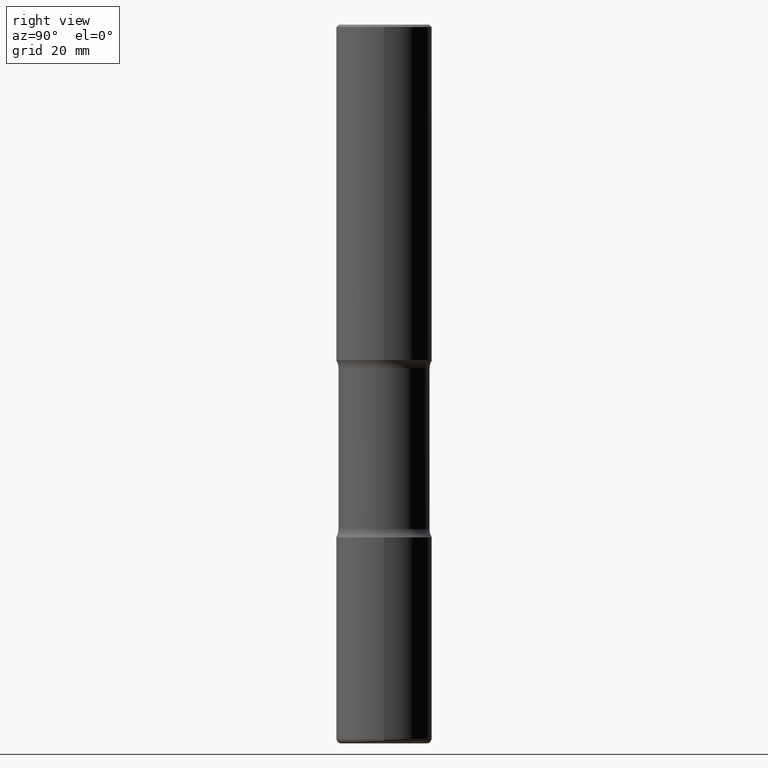
[diagram: clean part render]
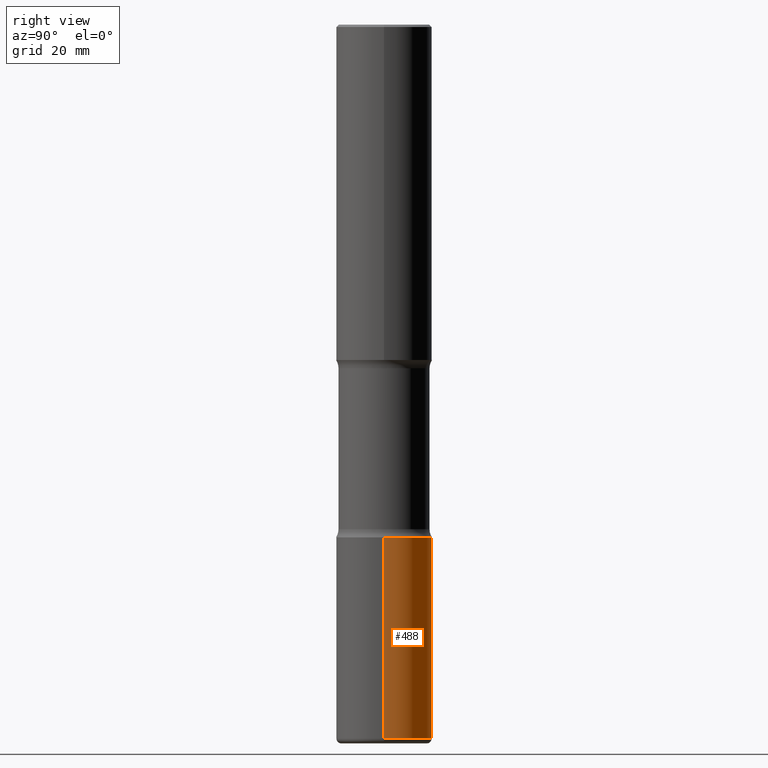
[diagram: same view with one face highlighted and labeled with its STEP entity id]
A machine part, right view. The second image highlights one B-rep face of the part: STEP entity #488.
In plain terms, the highlighted cylindrical surface (partial cylindrical patch) has radius 10 mm, axis along (-0, 0, 1).
Its self-contained STEP definition (entity closure, byte-faithful):
#5 = VECTOR ( 'NONE', #74, 39.37007874015748143 ) ;
#7 = CARTESIAN_POINT ( 'NONE',  ( 0.3937000000000002720, -1.745740669421571411E-14, -4.212599999999998346 ) ) ;
#24 = VERTEX_POINT ( 'NONE', #385 ) ;
#28 = EDGE_CURVE ( 'NONE', #371, #24, #262, .T. ) ;
#62 = EDGE_CURVE ( 'NONE', #157, #24, #226, .T. ) ;
#74 = DIRECTION ( 'NONE',  ( -2.445468806185136877E-29, 3.491481338843145188E-15, 1.000000000000000000 ) ) ;
#88 = DIRECTION ( 'NONE',  ( 1.000000000000000000, -6.982962677686265133E-15, 0.000000000000000000 ) ) ;
#108 = ORIENTED_EDGE ( 'NONE', *, *, #203, .T. ) ;
#117 = CARTESIAN_POINT ( 'NONE',  ( 0.000000000000000000, 0.000000000000000000, 0.000000000000000000 ) ) ;
#124 = CARTESIAN_POINT ( 'NONE',  ( -0.3937000000000004385, -1.768397193110025560E-14, -5.866099999999998538 ) ) ;
#151 = EDGE_LOOP ( 'NONE', ( #108, #539, #335, #290 ) ) ;
#157 = VERTEX_POINT ( 'NONE', #7 ) ;
#171 = CARTESIAN_POINT ( 'NONE',  ( 0.3937000000000004385, -2.323057108799285912E-14, -5.866099999999998538 ) ) ;
#203 = EDGE_CURVE ( 'NONE', #462, #371, #296, .T. ) ;
#213 = LINE ( 'NONE', #435, #5 ) ;
#226 = CIRCLE ( 'NONE', #306, 0.3937000000000002720 ) ;
#230 = DIRECTION ( 'NONE',  ( 1.000000000000000000, -6.982962677686269077E-15, 0.000000000000000000 ) ) ;
#262 = LINE ( 'NONE', #469, #466 ) ;
#278 = CARTESIAN_POINT ( 'NONE',  ( 1.434536456396262699E-28, -2.048137868178777275E-14, -5.866099999999998538 ) ) ;
#290 = ORIENTED_EDGE ( 'NONE', *, *, #370, .F. ) ;
#296 = CIRCLE ( 'NONE', #474, 0.3937000000000002164 ) ;
#306 = AXIS2_PLACEMENT_3D ( 'NONE', #448, #363, #230 ) ;
#316 = FACE_OUTER_BOUND ( 'NONE', #151, .T. ) ;
#335 = ORIENTED_EDGE ( 'NONE', *, *, #62, .F. ) ;
#348 = AXIS2_PLACEMENT_3D ( 'NONE', #117, #551, #515 ) ;
#349 = CYLINDRICAL_SURFACE ( 'NONE', #348, 0.3937000000000002164 ) ;
#363 = DIRECTION ( 'NONE',  ( -2.445468806185136597E-29, 3.491481338843145583E-15, 1.000000000000000000 ) ) ;
#370 = EDGE_CURVE ( 'NONE', #462, #157, #213, .T. ) ;
#371 = VERTEX_POINT ( 'NONE', #124 ) ;
#385 = CARTESIAN_POINT ( 'NONE',  ( -0.3937000000000002720, -1.479738973421168625E-14, -4.212599999999998346 ) ) ;
#430 = DIRECTION ( 'NONE',  ( -2.445468806185136877E-29, 3.491481338843145188E-15, 1.000000000000000000 ) ) ;
#435 = CARTESIAN_POINT ( 'NONE',  ( 0.3937000000000002164, -2.749192406205084794E-15, 1.919750796630861012E-29 ) ) ;
#448 = CARTESIAN_POINT ( 'NONE',  ( 1.030178189293550378E-28, -1.470821428801063089E-14, -4.212599999999998346 ) ) ;
#462 = VERTEX_POINT ( 'NONE', #171 ) ;
#466 = VECTOR ( 'NONE', #430, 39.37007874015748143 ) ;
#469 = CARTESIAN_POINT ( 'NONE',  ( -0.3937000000000002164, 2.797406750687515970E-15, -1.936584745033357576E-29 ) ) ;
#474 = AXIS2_PLACEMENT_3D ( 'NONE', #278, #479, #88 ) ;
#479 = DIRECTION ( 'NONE',  ( -2.445468806185136597E-29, 3.491481338843145583E-15, 1.000000000000000000 ) ) ;
#488 = ADVANCED_FACE ( 'NONE', ( #316 ), #349, .T. ) ;
#515 = DIRECTION ( 'NONE',  ( 1.000000000000000000, -6.982962677686266711E-15, 4.876176775795935793E-29 ) ) ;
#539 = ORIENTED_EDGE ( 'NONE', *, *, #28, .T. ) ;
#551 = DIRECTION ( 'NONE',  ( -2.445468806185136597E-29, 3.491481338843145583E-15, 1.000000000000000000 ) ) ;